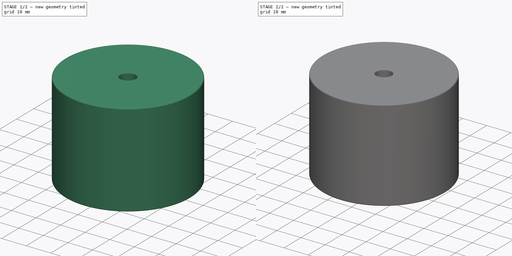
[diagram: build sequence overview — one tinted view per stage of 2, left to right]
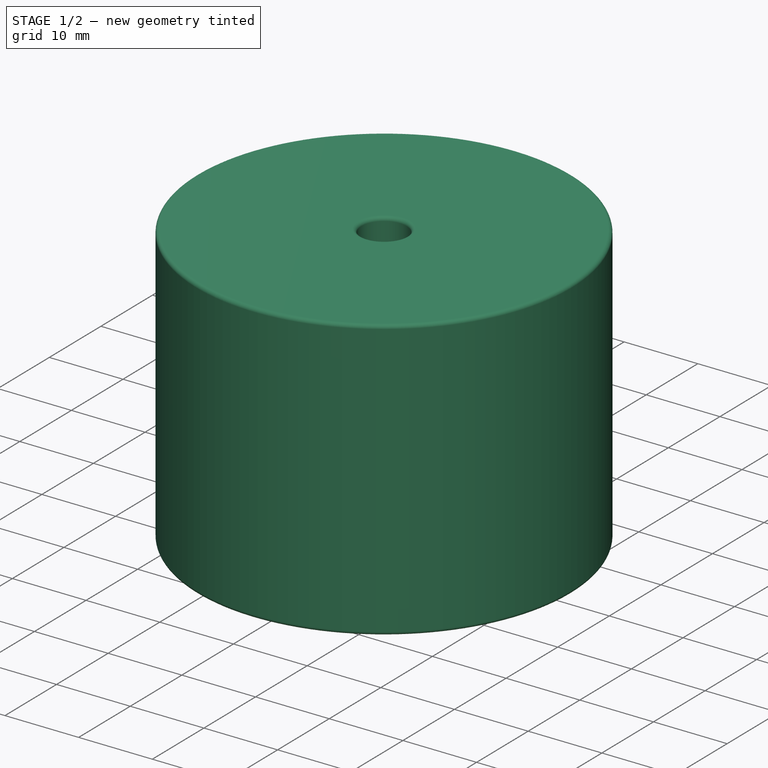
[diagram: stage 1 of 2 — iso view after this stage's code; geometry added in this stage tinted green]
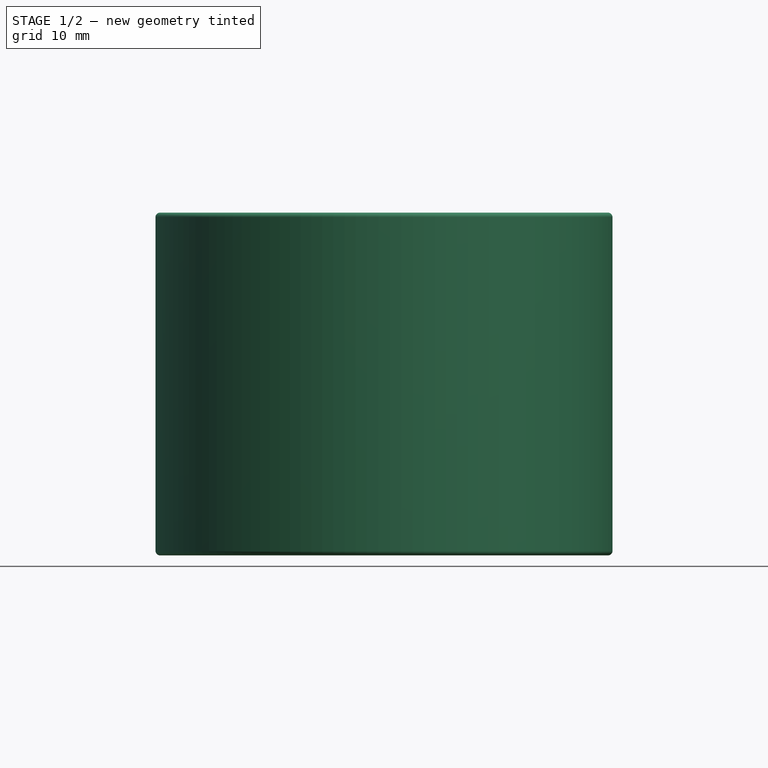
[diagram: stage 1 of 2 — front view after this stage's code; geometry added in this stage tinted green]
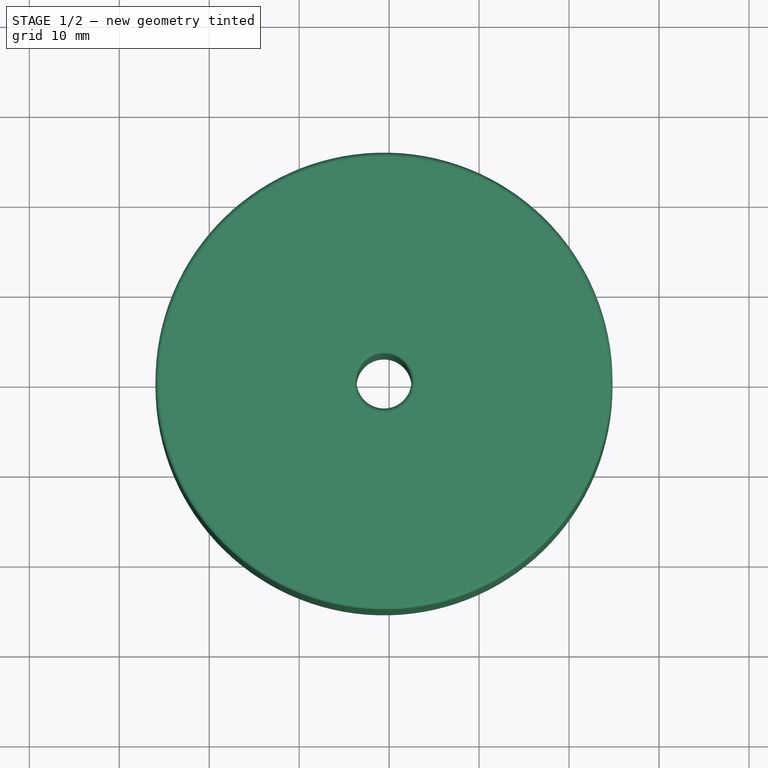
[diagram: stage 1 of 2 — top view after this stage's code; geometry added in this stage tinted green]
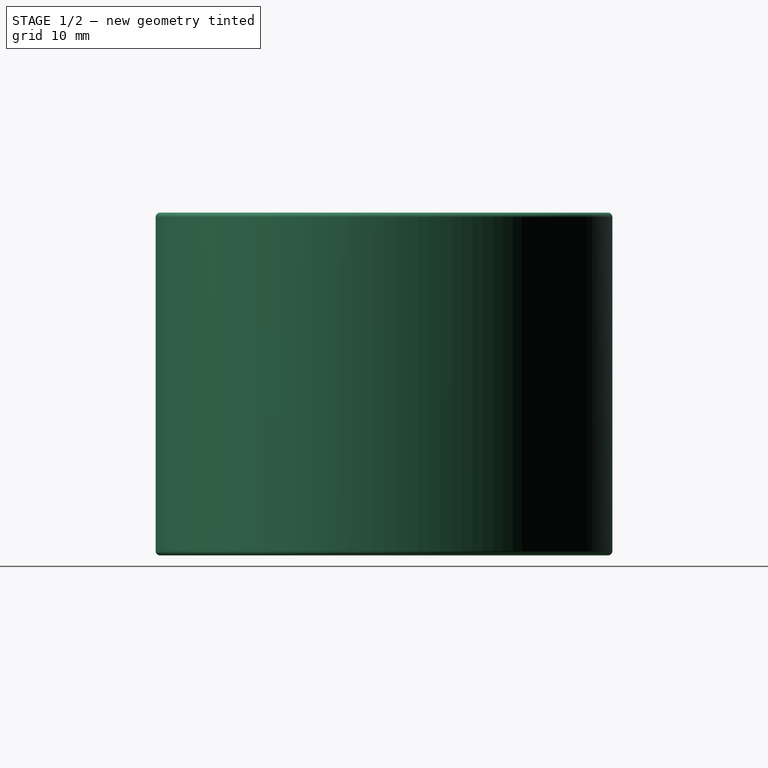
[diagram: stage 1 of 2 — right view after this stage's code; geometry added in this stage tinted green]
FCSTD DOCUMENT  (FreeCAD 0.16R6712 (Git))
Label: L_Radial_D50.8mm_P38.86mm_Vishay_IHB-6
License: All rights reserved
LicenseURL: http://en.wikipedia.org/wiki/All_rights_reserved
objects: Sketcher::SketchObject×2, PartDesign::Pad×2, Spreadsheet::Sheet×1, PartDesign::Fillet×1, Part::MultiFuse×1
note: 8 computed .brp shape members not serialized (recipe doc carries the construction recipe); baked Part::Feature solids carry a one-line shape summary decoded from their .brp

FEATURE [Spreadsheet::Sheet] Spreadsheet  label="dimensions"
  cells = A1=Wx; B1(Wx)=50.8; C1(WW)=6.1; D1=50.8; A2=Wy; B2(Wy)=50.8; D2=50.8; A3=RM; B3(RMx)=38.86; C3(RMy)=0; A4=d_wire; B4(d_wire)=2.6; A5=H; B5(H)=38.1; A6=offsetx; B6(offsetx)=5.969999999999999
FEATURE [Sketcher::SketchObject] Sketch
  Placement = pos=(0,0,0.1) rot=(0,0,1;0rad)
  expr: Constraints[0] = Spreadsheet.Wx / 2
  expr: Constraints[4] = Spreadsheet.WW / 2
  expr: Constraints[2] = Spreadsheet.RMy / 2
  expr: Constraints[1] = Spreadsheet.RMx / 2
  sketch-geometry (2):
    g0: Circle CenterX=19.43 CenterY=0 CenterZ=0 NormalX=0 NormalY=0 NormalZ=1 Radius=25.4
    g1: Circle CenterX=19.43 CenterY=0 CenterZ=0 NormalX=0 NormalY=0 NormalZ=1 Radius=3.05
  constraints (5):
    c: Radius(g0) = 25.4
    c: DistanceX(g-1,g0) = 19.43
    c: DistanceY(g-1,g0) = 0
    c: Coincident(g1,g0)
    c: Radius(g1) = 3.05
FEATURE [PartDesign::Pad] Pad
  Length = 38.1
  Length2 = 100
  Placement = pos=(0,0,0.1) rot=(0,0,1;0rad)
  Sketch = -> Sketch
  Type = 0
  expr: Length = Spreadsheet.H
FEATURE [PartDesign::Fillet] Fillet
  Base = -> Pad [Edge6,Edge3,Edge2]
  Placement = pos=(0,0,0.1) rot=(0,0,1;0rad)
  Radius = 0.5
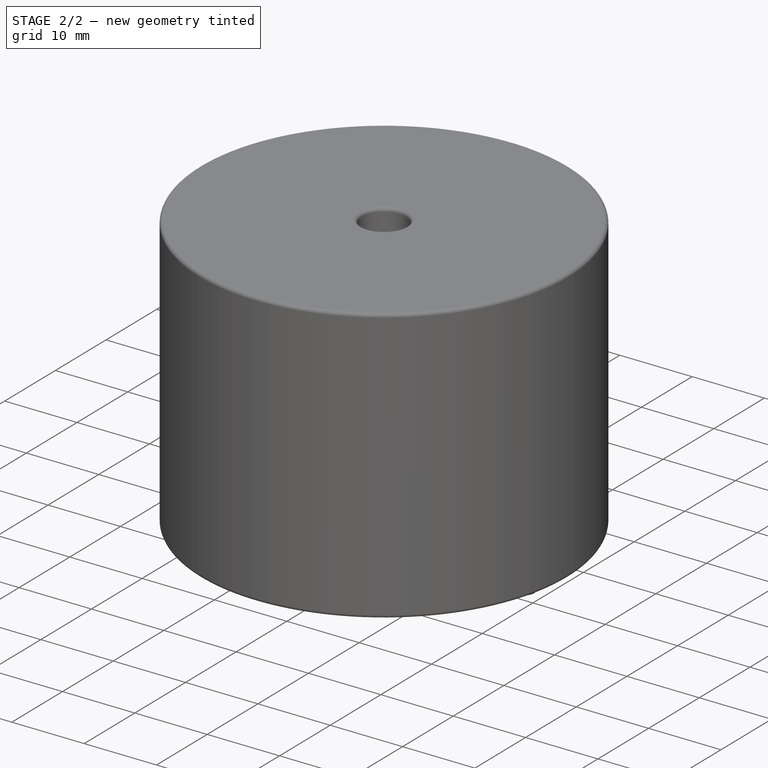
[diagram: stage 2 of 2 — iso view after this stage's code; geometry added in this stage tinted green]
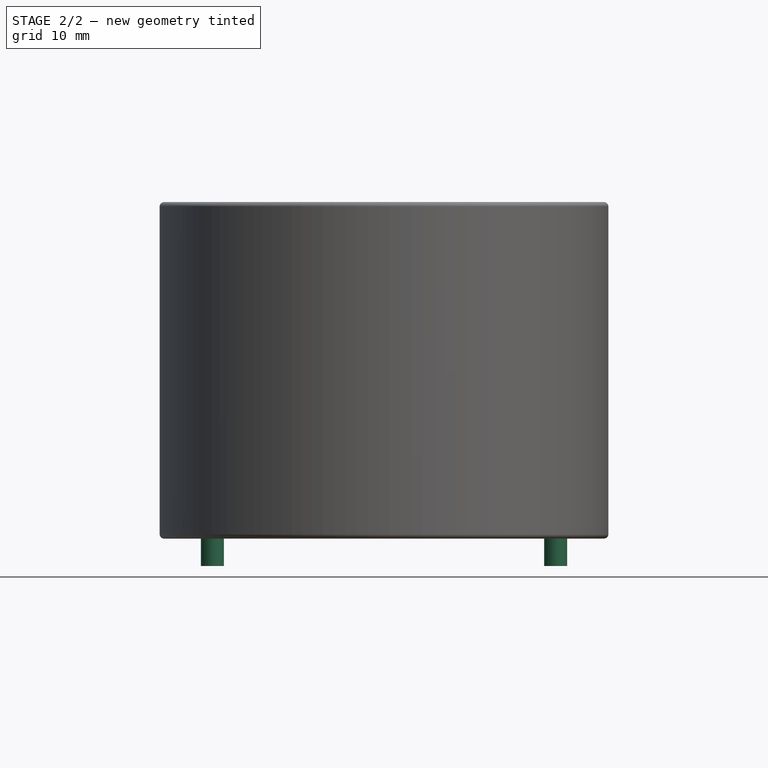
[diagram: stage 2 of 2 — front view after this stage's code; geometry added in this stage tinted green]
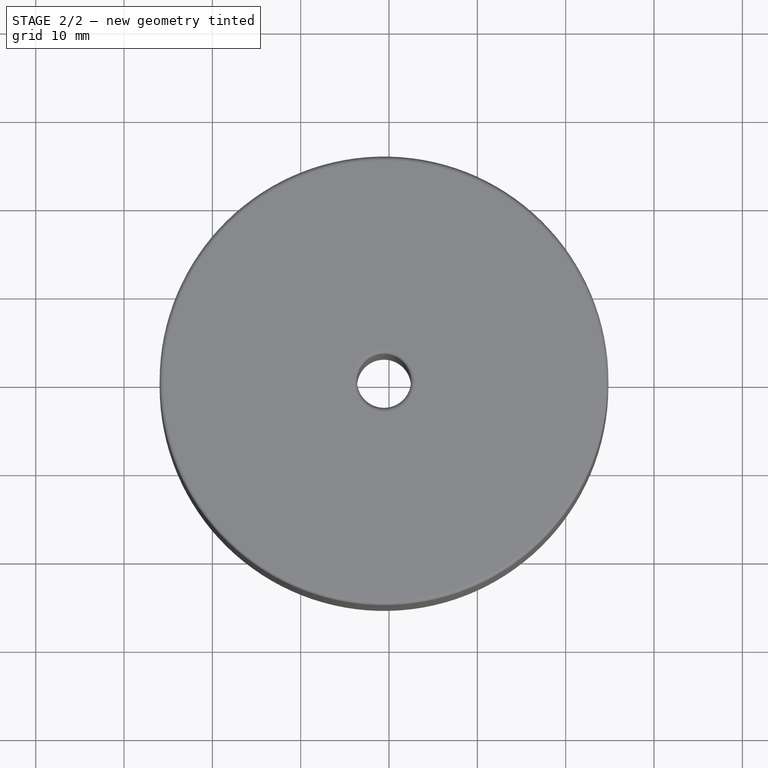
[diagram: stage 2 of 2 — top view after this stage's code; geometry added in this stage tinted green]
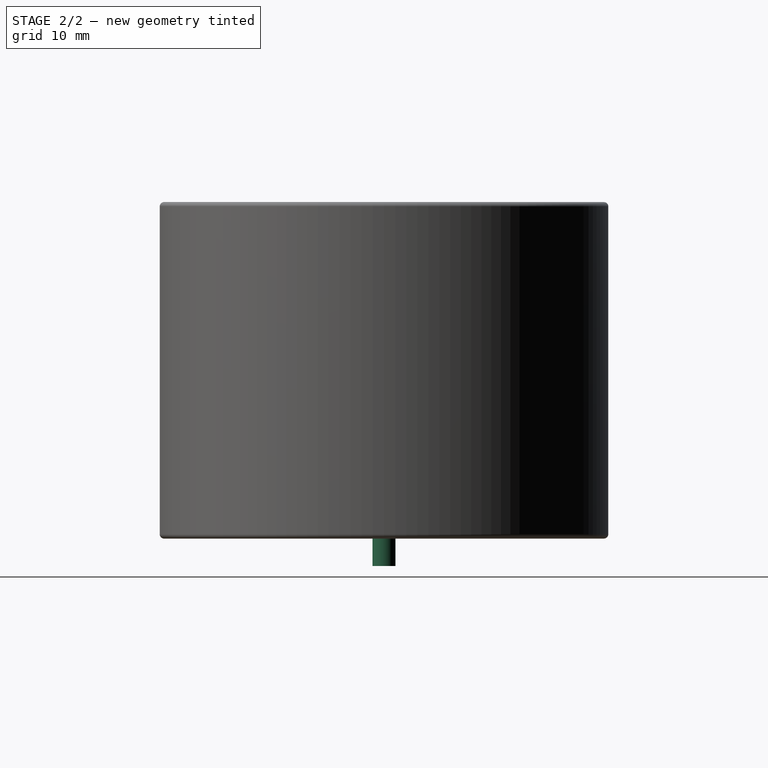
[diagram: stage 2 of 2 — right view after this stage's code; geometry added in this stage tinted green]
FEATURE [Sketcher::SketchObject] Sketch001
  Placement = pos=(0,0,0.5) rot=(0,0,1;0rad)
  expr: Constraints[4] = Spreadsheet.RMx
  expr: Constraints[2] = Spreadsheet.RMy
  expr: Constraints[1] = Spreadsheet.d_wire / 2
  sketch-geometry (2):
    g0: Circle CenterX=0 CenterY=0 CenterZ=0 NormalX=0 NormalY=0 NormalZ=1 Radius=1.3
    g1: Circle CenterX=38.86 CenterY=0 CenterZ=0 NormalX=0 NormalY=0 NormalZ=1 Radius=1.3
  constraints (5):
    c: Equal(g0,g1)
    c: Radius(g0) = 1.3
    c: DistanceY(g-1,g1) = 0
    c: Coincident(g0,g-1)
    c: DistanceX(g-1,g1) = 38.86
FEATURE [PartDesign::Pad] Pad001
  Length = 19.05
  Length2 = 3.5
  Placement = pos=(0,0,0.5) rot=(0,0,1;0rad)
  Reversed = true
  Sketch = -> Sketch001
  Type = 4
  expr: Length = Spreadsheet.H / 2
FEATURE [Part::MultiFuse] Pad001_mp_cp  label="L_Radial_D50.8mm_P38.86mm_Vishay_IHB-6"
  Shapes = -> [Pad001,Fillet]
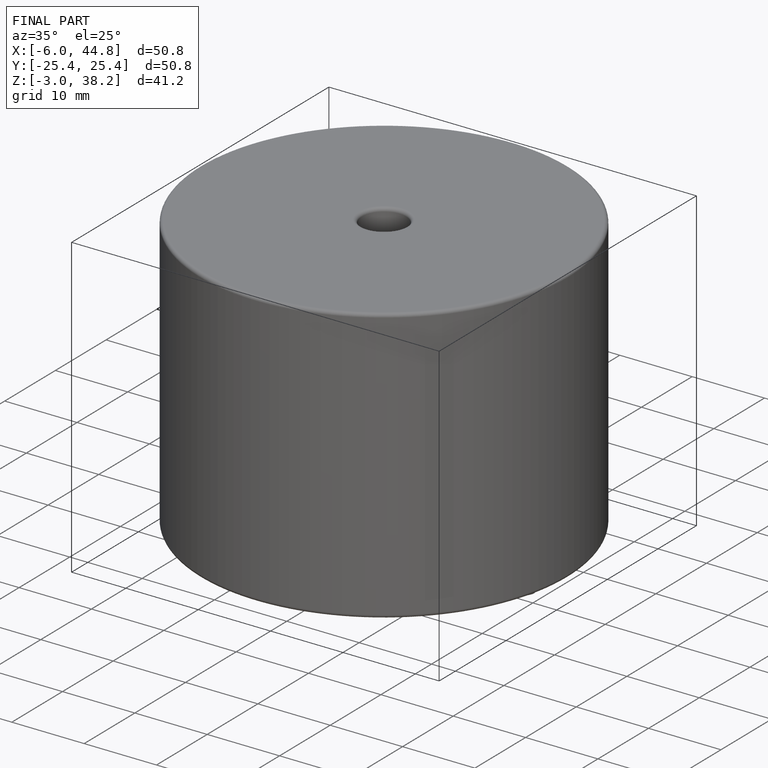
[diagram: finished part — iso view with bounding-box wireframe]
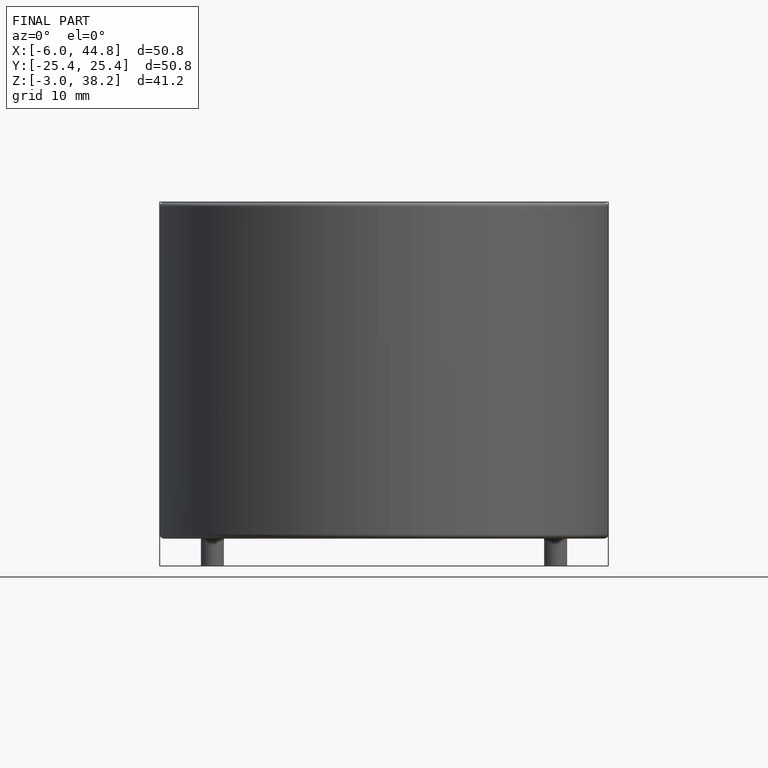
[diagram: finished part — front view with bounding-box wireframe]
